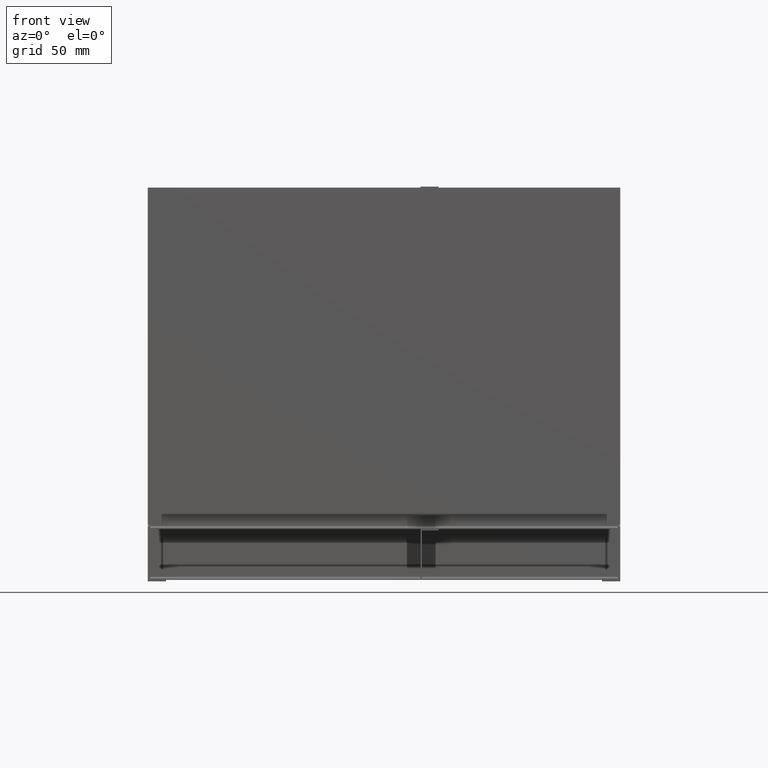
[diagram: clean part render]
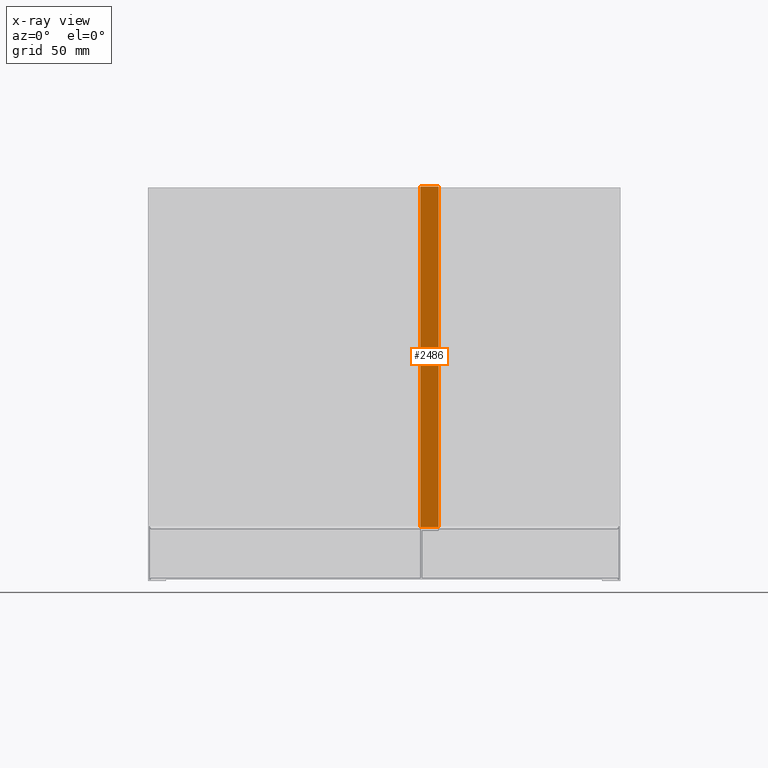
[diagram: x-ray — body ghosted, one internal face saturated and labeled with its STEP entity id]
A machine part, front view, then the same camera in x-ray: the body is ghosted and one INTERNAL B-rep face — a face not visible from any outside direction — is saturated and labeled: STEP entity #2486.
In plain terms, the highlighted planar face has unit normal (0, 1, 0).
Its self-contained STEP definition (entity closure, byte-faithful):
#2161=DIRECTION('',(0.E0,0.E0,1.E0));
#2162=VECTOR('',#2161,1.73E2);
#2163=CARTESIAN_POINT('',(1.25E1,0.E0,-1.73E2));
#2164=LINE('',#2163,#2162);
#2168=DIRECTION('',(0.E0,1.E0,0.E0));
#2169=VECTOR('',#2168,9.25E0);
#2170=CARTESIAN_POINT('',(1.25E1,0.E0,0.E0));
#2171=LINE('',#2170,#2169);
#2183=DIRECTION('',(0.E0,0.E0,1.E0));
#2184=VECTOR('',#2183,1.73E2);
#2185=CARTESIAN_POINT('',(1.25E1,9.25E0,-1.73E2));
#2186=LINE('',#2185,#2184);
#2241=DIRECTION('',(0.E0,1.E0,0.E0));
#2242=VECTOR('',#2241,9.25E0);
#2243=CARTESIAN_POINT('',(1.25E1,0.E0,-1.73E2));
#2244=LINE('',#2243,#2242);
#2270=CARTESIAN_POINT('',(1.25E1,0.E0,0.E0));
#2271=VERTEX_POINT('',#2270);
#2272=CARTESIAN_POINT('',(1.25E1,0.E0,-1.73E2));
#2273=VERTEX_POINT('',#2272);
#2287=CARTESIAN_POINT('',(1.25E1,9.25E0,-1.73E2));
#2289=VERTEX_POINT('',#2287);
#2298=CARTESIAN_POINT('',(1.25E1,9.25E0,0.E0));
#2299=VERTEX_POINT('',#2298);
#2473=CARTESIAN_POINT('',(1.25E1,7.5E-1,0.E0));
#2474=DIRECTION('',(-1.E0,0.E0,0.E0));
#2475=DIRECTION('',(0.E0,0.E0,1.E0));
#2476=AXIS2_PLACEMENT_3D('',#2473,#2474,#2475);
#2477=PLANE('',#2476);
#2478=ORIENTED_EDGE('',*,*,#2461,.T.);
#2479=ORIENTED_EDGE('',*,*,#2344,.T.);
#2481=ORIENTED_EDGE('',*,*,#2480,.F.);
#2483=ORIENTED_EDGE('',*,*,#2482,.F.);
#2484=EDGE_LOOP('',(#2478,#2479,#2481,#2483));
#2485=FACE_OUTER_BOUND('',#2484,.F.);
#2344=EDGE_CURVE('',#2271,#2299,#2171,.T.);
#2461=EDGE_CURVE('',#2273,#2271,#2164,.T.);
#2480=EDGE_CURVE('',#2289,#2299,#2186,.T.);
#2482=EDGE_CURVE('',#2273,#2289,#2244,.T.);
#2486=ADVANCED_FACE('',(#2485),#2477,.F.);